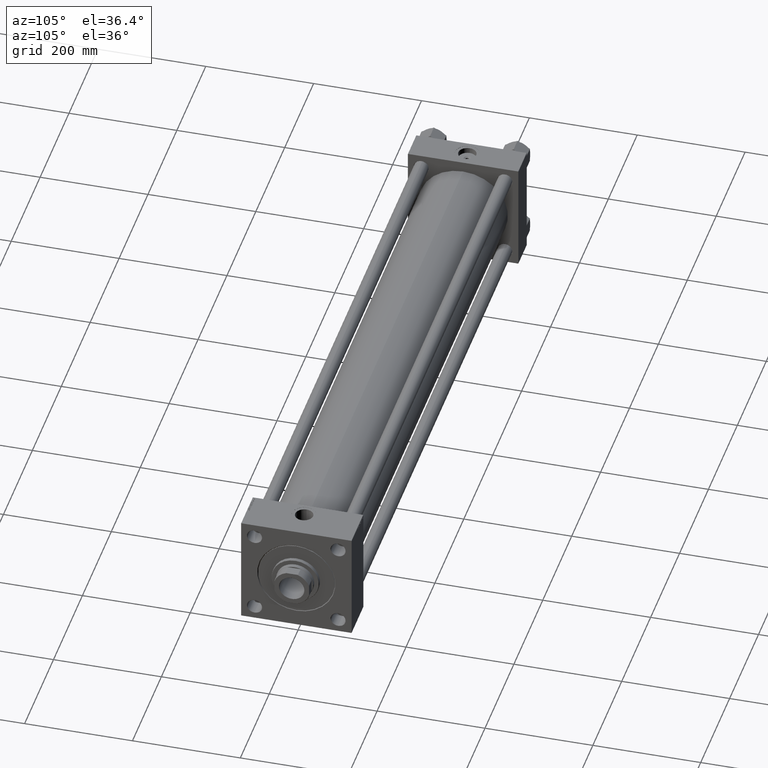
[diagram: clean part render]
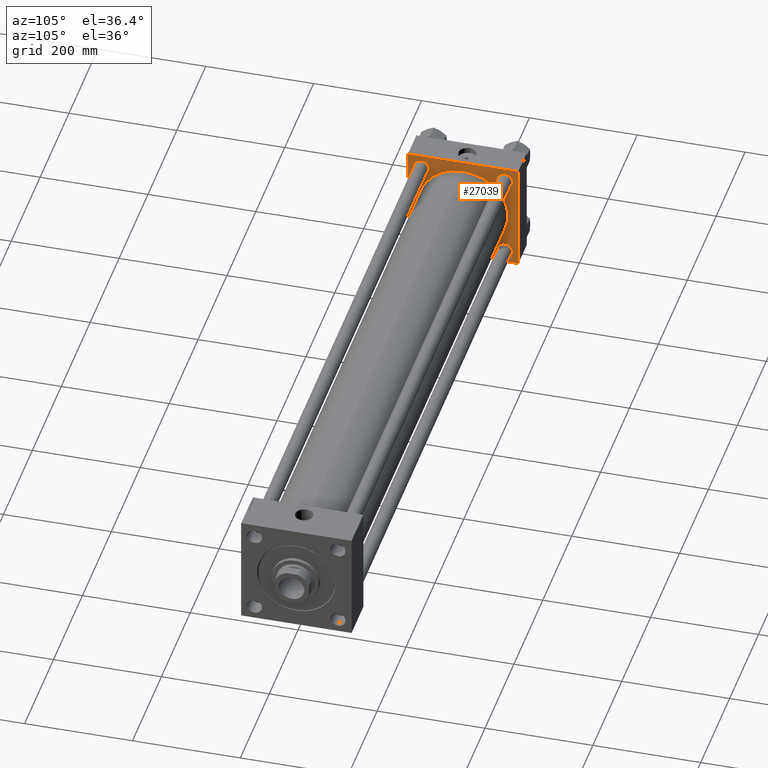
[diagram: same view with one face highlighted and labeled with its STEP entity id]
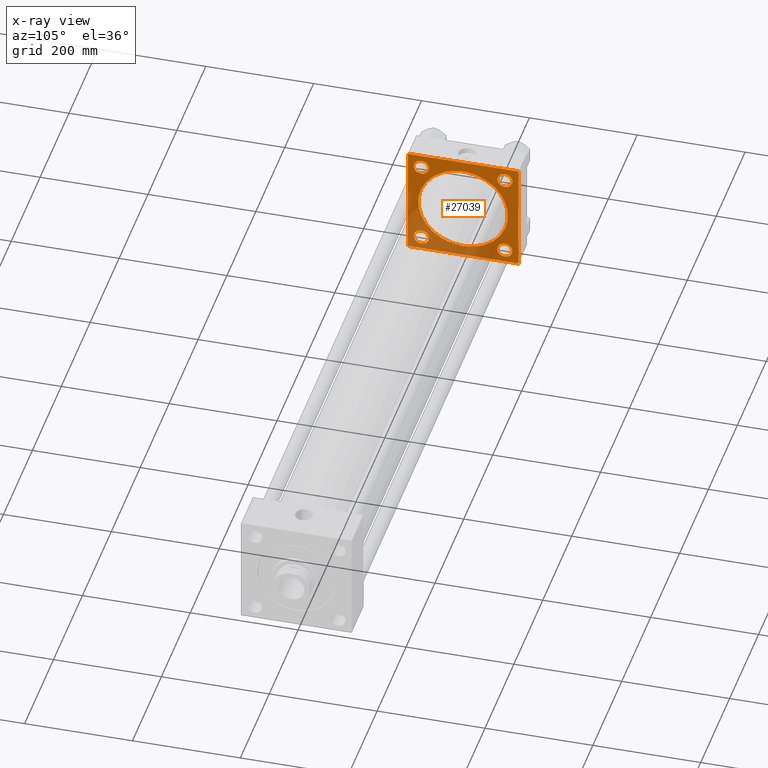
[diagram: x-ray of the same camera — body ghosted, the highlighted face saturated]
A machine part, auxiliary view. The second image highlights one B-rep face of the part: STEP entity #27039.
The next image is the same camera in x-ray: the body ghosted, the highlighted face saturated — about 33% of this face is hidden behind the body in this view.
In plain terms, the highlighted planar face has unit normal (-1, 0, 0).
Its self-contained STEP definition (entity closure, byte-faithful):
#197 = VERTEX_POINT ( 'NONE', #9408 ) ;
#313 = EDGE_CURVE ( 'NONE', #28670, #39860, #47938, .T. ) ;
#443 = EDGE_LOOP ( 'NONE', ( #2883, #39501 ) ) ;
#647 = CARTESIAN_POINT ( 'NONE',  ( 58.00000000000000000, -101.9999999999999147, 102.5000000000000000 ) ) ;
#1218 = CARTESIAN_POINT ( 'NONE',  ( 58.00000000000000000, -77.44999999999996021, 77.45000000000003126 ) ) ;
#1687 = CIRCLE ( 'NONE', #23027, 83.00000000000000000 ) ;
#1791 = CARTESIAN_POINT ( 'NONE',  ( 58.00000000000000000, 102.0000000000000142, 102.5000000000000284 ) ) ;
#2122 = EDGE_CURVE ( 'NONE', #26507, #45393, #36684, .T. ) ;
#2284 = EDGE_CURVE ( 'NONE', #26507, #6156, #35623, .T. ) ;
#2457 = DIRECTION ( 'NONE',  ( -1.000000000000000000, 0.000000000000000000, 0.000000000000000000 ) ) ;
#2765 = EDGE_CURVE ( 'NONE', #45393, #18542, #3622, .T. ) ;
#2883 = ORIENTED_EDGE ( 'NONE', *, *, #30696, .F. ) ;
#3104 = DIRECTION ( 'NONE',  ( 0.000000000000000000, 0.000000000000000000, 1.000000000000000000 ) ) ;
#3184 = CARTESIAN_POINT ( 'NONE',  ( 58.00000000000000000, 102.5000000000000284, -101.9999999999999716 ) ) ;
#3208 = EDGE_CURVE ( 'NONE', #13408, #25303, #33277, .T. ) ;
#3209 = VECTOR ( 'NONE', #27082, 1000.000000000000114 ) ;
#3622 = LINE ( 'NONE', #34942, #8675 ) ;
#3783 = EDGE_LOOP ( 'NONE', ( #34536, #40394, #17226, #39242, #47201, #29360, #7134, #49538 ) ) ;
#5227 = VECTOR ( 'NONE', #37933, 1000.000000000000000 ) ;
#5484 = EDGE_CURVE ( 'NONE', #39860, #28670, #9603, .T. ) ;
#6053 = DIRECTION ( 'NONE',  ( 0.000000000000000000, 0.000000000000000000, 1.000000000000000000 ) ) ;
#6156 = VERTEX_POINT ( 'NONE', #31618 ) ;
#6831 = CARTESIAN_POINT ( 'NONE',  ( 58.00000000000000000, 102.5000000000000284, 102.0000000000000142 ) ) ;
#6941 = EDGE_CURVE ( 'NONE', #37125, #26574, #50523, .T. ) ;
#7134 = ORIENTED_EDGE ( 'NONE', *, *, #6941, .T. ) ;
#7397 = CIRCLE ( 'NONE', #37724, 13.99999999999956835 ) ;
#8336 = ORIENTED_EDGE ( 'NONE', *, *, #35520, .T. ) ;
#8675 = VECTOR ( 'NONE', #31100, 1000.000000000000000 ) ;
#8943 = CARTESIAN_POINT ( 'NONE',  ( 58.00000000000000000, 77.44999999999998863, -77.45000000000001705 ) ) ;
#9167 = EDGE_LOOP ( 'NONE', ( #8336, #28953 ) ) ;
#9211 = DIRECTION ( 'NONE',  ( 0.000000000000000000, 0.000000000000000000, 1.000000000000000000 ) ) ;
#9408 = CARTESIAN_POINT ( 'NONE',  ( 58.00000000000000000, 77.44999999999998863, -63.45000000000045048 ) ) ;
#9603 = CIRCLE ( 'NONE', #38253, 13.99999999999956835 ) ;
#10271 = CARTESIAN_POINT ( 'NONE',  ( 58.00000000000000000, -102.4999999999999716, 102.0000000000000000 ) ) ;
#10374 = CARTESIAN_POINT ( 'NONE',  ( 58.00000000000000000, -101.9999999999999432, -102.5000000000000000 ) ) ;
#10420 = CARTESIAN_POINT ( 'NONE',  ( 58.00000000000000000, -77.44999999999996021, -77.45000000000003126 ) ) ;
#10623 = AXIS2_PLACEMENT_3D ( 'NONE', #8943, #13048, #9211 ) ;
#10930 = CARTESIAN_POINT ( 'NONE',  ( 58.00000000000000000, -77.44999999999996021, -63.45000000000046469 ) ) ;
#11249 = CARTESIAN_POINT ( 'NONE',  ( 58.00000000000000000, 102.5000000000000284, -102.4999999999999716 ) ) ;
#11262 = DIRECTION ( 'NONE',  ( 0.000000000000000000, 0.000000000000000000, 1.000000000000000000 ) ) ;
#11650 = CARTESIAN_POINT ( 'NONE',  ( 58.00000000000004974, -2.602085213965210642E-15, 83.00000000000000000 ) ) ;
#11775 = DIRECTION ( 'NONE',  ( 0.000000000000000000, 0.000000000000000000, -1.000000000000000000 ) ) ;
#12273 = CIRCLE ( 'NONE', #10623, 13.99999999999956835 ) ;
#13048 = DIRECTION ( 'NONE',  ( -1.000000000000000000, 0.000000000000000000, 0.000000000000000000 ) ) ;
#13156 = FACE_BOUND ( 'NONE', #39006, .T. ) ;
#13276 = DIRECTION ( 'NONE',  ( 0.000000000000000000, 0.000000000000000000, 1.000000000000000000 ) ) ;
#13408 = VERTEX_POINT ( 'NONE', #39733 ) ;
#13516 = CIRCLE ( 'NONE', #37272, 83.00000000000000000 ) ;
#13519 = CARTESIAN_POINT ( 'NONE',  ( 58.00000000000004974, -2.602085213965210642E-15, 0.000000000000000000 ) ) ;
#13923 = DIRECTION ( 'NONE',  ( -1.000000000000000000, 0.000000000000000000, 0.000000000000000000 ) ) ;
#14018 = DIRECTION ( 'NONE',  ( 0.000000000000000000, 0.000000000000000000, 1.000000000000000000 ) ) ;
#14100 = EDGE_CURVE ( 'NONE', #26574, #26851, #34769, .T. ) ;
#14361 = CARTESIAN_POINT ( 'NONE',  ( 58.00000000000000000, 77.44999999999998863, 91.44999999999959073 ) ) ;
#15552 = CARTESIAN_POINT ( 'NONE',  ( 58.00000000000004974, -2.602085213965210642E-15, 0.000000000000000000 ) ) ;
#15614 = CARTESIAN_POINT ( 'NONE',  ( 58.00000000000000000, 102.5000000000000284, 102.5000000000000284 ) ) ;
#15879 = DIRECTION ( 'NONE',  ( -1.000000000000000000, 0.000000000000000000, 0.000000000000000000 ) ) ;
#16088 = CARTESIAN_POINT ( 'NONE',  ( 58.00000000000000000, 77.44999999999998863, 63.45000000000045048 ) ) ;
#16674 = EDGE_CURVE ( 'NONE', #34099, #39396, #1687, .T. ) ;
#17226 = ORIENTED_EDGE ( 'NONE', *, *, #2284, .F. ) ;
#17372 = VERTEX_POINT ( 'NONE', #49230 ) ;
#17765 = CARTESIAN_POINT ( 'NONE',  ( 58.00000000000000000, 77.44999999999998863, 77.45000000000001705 ) ) ;
#18542 = VERTEX_POINT ( 'NONE', #647 ) ;
#19316 = ORIENTED_EDGE ( 'NONE', *, *, #313, .T. ) ;
#20079 = AXIS2_PLACEMENT_3D ( 'NONE', #10420, #2457, #14018 ) ;
#20859 = FACE_BOUND ( 'NONE', #443, .T. ) ;
#21618 = AXIS2_PLACEMENT_3D ( 'NONE', #41862, #30589, #3104 ) ;
#22214 = DIRECTION ( 'NONE',  ( -0.000000000000000000, -0.7071067811865474617, -0.7071067811865474617 ) ) ;
#22506 = ORIENTED_EDGE ( 'NONE', *, *, #43637, .T. ) ;
#23027 = AXIS2_PLACEMENT_3D ( 'NONE', #13519, #32531, #13276 ) ;
#24039 = DIRECTION ( 'NONE',  ( -1.000000000000000000, 0.000000000000000000, 0.000000000000000000 ) ) ;
#24710 = FACE_BOUND ( 'NONE', #29171, .T. ) ;
#25303 = VERTEX_POINT ( 'NONE', #34958 ) ;
#25521 = ORIENTED_EDGE ( 'NONE', *, *, #5484, .T. ) ;
#25589 = DIRECTION ( 'NONE',  ( -1.000000000000000000, 0.000000000000000000, 0.000000000000000000 ) ) ;
#26007 = EDGE_CURVE ( 'NONE', #27773, #197, #39581, .T. ) ;
#26317 = CARTESIAN_POINT ( 'NONE',  ( 58.00000000000000000, -102.4999999999999716, 102.0000000000000000 ) ) ;
#26484 = EDGE_LOOP ( 'NONE', ( #28849, #22506 ) ) ;
#26507 = VERTEX_POINT ( 'NONE', #6831 ) ;
#26527 = CIRCLE ( 'NONE', #37966, 13.99999999999956835 ) ;
#26574 = VERTEX_POINT ( 'NONE', #50185 ) ;
#26851 = VERTEX_POINT ( 'NONE', #10374 ) ;
#27039 = ADVANCED_FACE ( 'NONE', ( #13156, #32421, #48044, #24710, #20859, #36499 ), #28824, .F. ) ;
#27082 = DIRECTION ( 'NONE',  ( 0.000000000000000000, 0.7071067811865474617, -0.7071067811865474617 ) ) ;
#27773 = VERTEX_POINT ( 'NONE', #44715 ) ;
#27861 = EDGE_CURVE ( 'NONE', #37692, #31472, #26527, .T. ) ;
#28670 = VERTEX_POINT ( 'NONE', #10930 ) ;
#28824 = PLANE ( 'NONE',  #21618 ) ;
#28849 = ORIENTED_EDGE ( 'NONE', *, *, #26007, .T. ) ;
#28953 = ORIENTED_EDGE ( 'NONE', *, *, #3208, .T. ) ;
#29171 = EDGE_LOOP ( 'NONE', ( #32138, #30766 ) ) ;
#29270 = EDGE_CURVE ( 'NONE', #17372, #26851, #50244, .T. ) ;
#29360 = ORIENTED_EDGE ( 'NONE', *, *, #36997, .T. ) ;
#29591 = DIRECTION ( 'NONE',  ( 0.000000000000000000, 0.000000000000000000, 1.000000000000000000 ) ) ;
#29990 = VECTOR ( 'NONE', #32864, 1000.000000000000114 ) ;
#30019 = AXIS2_PLACEMENT_3D ( 'NONE', #1218, #32563, #48184 ) ;
#30589 = DIRECTION ( 'NONE',  ( -1.000000000000000000, 0.000000000000000000, 0.000000000000000000 ) ) ;
#30660 = LINE ( 'NONE', #3184, #42424 ) ;
#30696 = EDGE_CURVE ( 'NONE', #39396, #34099, #13516, .T. ) ;
#30766 = ORIENTED_EDGE ( 'NONE', *, *, #46420, .T. ) ;
#31100 = DIRECTION ( 'NONE',  ( 0.000000000000000000, -1.000000000000000000, -1.353930517835556973E-16 ) ) ;
#31226 = DIRECTION ( 'NONE',  ( 1.000000000000000000, -0.000000000000000000, -0.000000000000000000 ) ) ;
#31472 = VERTEX_POINT ( 'NONE', #14361 ) ;
#31618 = CARTESIAN_POINT ( 'NONE',  ( 58.00000000000000000, 102.5000000000000284, -101.9999999999999147 ) ) ;
#32138 = ORIENTED_EDGE ( 'NONE', *, *, #27861, .T. ) ;
#32246 = DIRECTION ( 'NONE',  ( 0.000000000000000000, 0.000000000000000000, 1.000000000000000000 ) ) ;
#32421 = FACE_BOUND ( 'NONE', #26484, .T. ) ;
#32531 = DIRECTION ( 'NONE',  ( 1.000000000000000000, -0.000000000000000000, -0.000000000000000000 ) ) ;
#32563 = DIRECTION ( 'NONE',  ( -1.000000000000000000, 0.000000000000000000, 0.000000000000000000 ) ) ;
#32864 = DIRECTION ( 'NONE',  ( 0.000000000000000000, -0.7071067811865474617, 0.7071067811865474617 ) ) ;
#33277 = CIRCLE ( 'NONE', #30019, 13.99999999999956835 ) ;
#34099 = VERTEX_POINT ( 'NONE', #48848 ) ;
#34536 = ORIENTED_EDGE ( 'NONE', *, *, #29270, .F. ) ;
#34645 = CARTESIAN_POINT ( 'NONE',  ( 58.00000000000000000, -102.4999999999999716, 102.5000000000000000 ) ) ;
#34769 = LINE ( 'NONE', #50397, #3209 ) ;
#34942 = CARTESIAN_POINT ( 'NONE',  ( 58.00000000000000000, 102.5000000000000284, 102.5000000000000284 ) ) ;
#34958 = CARTESIAN_POINT ( 'NONE',  ( 58.00000000000000000, -77.44999999999996021, 63.45000000000046469 ) ) ;
#35520 = EDGE_CURVE ( 'NONE', #25303, #13408, #43031, .T. ) ;
#35623 = LINE ( 'NONE', #15614, #45566 ) ;
#36499 = FACE_OUTER_BOUND ( 'NONE', #3783, .T. ) ;
#36684 = LINE ( 'NONE', #1791, #29990 ) ;
#36830 = CARTESIAN_POINT ( 'NONE',  ( 58.00000000000000000, -77.44999999999996021, -91.44999999999960494 ) ) ;
#36997 = EDGE_CURVE ( 'NONE', #18542, #37125, #41692, .T. ) ;
#37125 = VERTEX_POINT ( 'NONE', #10271 ) ;
#37272 = AXIS2_PLACEMENT_3D ( 'NONE', #15552, #31226, #46865 ) ;
#37692 = VERTEX_POINT ( 'NONE', #16088 ) ;
#37724 = AXIS2_PLACEMENT_3D ( 'NONE', #41718, #25589, #6053 ) ;
#37933 = DIRECTION ( 'NONE',  ( 0.000000000000000000, -1.000000000000000000, -1.353930517835556727E-16 ) ) ;
#37966 = AXIS2_PLACEMENT_3D ( 'NONE', #17765, #13923, #29591 ) ;
#38139 = VECTOR ( 'NONE', #22214, 1000.000000000000114 ) ;
#38253 = AXIS2_PLACEMENT_3D ( 'NONE', #43514, #24039, #32246 ) ;
#39006 = EDGE_LOOP ( 'NONE', ( #25521, #19316 ) ) ;
#39242 = ORIENTED_EDGE ( 'NONE', *, *, #2122, .T. ) ;
#39396 = VERTEX_POINT ( 'NONE', #11650 ) ;
#39501 = ORIENTED_EDGE ( 'NONE', *, *, #16674, .F. ) ;
#39581 = CIRCLE ( 'NONE', #46136, 13.99999999999956835 ) ;
#39733 = CARTESIAN_POINT ( 'NONE',  ( 58.00000000000000000, -77.44999999999996021, 91.44999999999960494 ) ) ;
#39860 = VERTEX_POINT ( 'NONE', #36830 ) ;
#40199 = CARTESIAN_POINT ( 'NONE',  ( 58.00000000000000000, 102.0000000000000142, 102.5000000000000284 ) ) ;
#40394 = ORIENTED_EDGE ( 'NONE', *, *, #42671, .T. ) ;
#41692 = LINE ( 'NONE', #26317, #38139 ) ;
#41718 = CARTESIAN_POINT ( 'NONE',  ( 58.00000000000000000, 77.44999999999998863, 77.45000000000001705 ) ) ;
#41862 = CARTESIAN_POINT ( 'NONE',  ( 58.00000000000000000, 0.000000000000000000, 0.000000000000000000 ) ) ;
#42424 = VECTOR ( 'NONE', #45289, 1000.000000000000114 ) ;
#42522 = CARTESIAN_POINT ( 'NONE',  ( 58.00000000000000000, 77.44999999999998863, -77.45000000000001705 ) ) ;
#42576 = DIRECTION ( 'NONE',  ( 0.000000000000000000, -1.353930517835556973E-16, -1.000000000000000000 ) ) ;
#42671 = EDGE_CURVE ( 'NONE', #17372, #6156, #30660, .T. ) ;
#43031 = CIRCLE ( 'NONE', #45474, 13.99999999999956835 ) ;
#43251 = VECTOR ( 'NONE', #42576, 1000.000000000000000 ) ;
#43514 = CARTESIAN_POINT ( 'NONE',  ( 58.00000000000000000, -77.44999999999996021, -77.45000000000003126 ) ) ;
#43637 = EDGE_CURVE ( 'NONE', #197, #27773, #12273, .T. ) ;
#44715 = CARTESIAN_POINT ( 'NONE',  ( 58.00000000000000000, 77.44999999999998863, -91.44999999999959073 ) ) ;
#45289 = DIRECTION ( 'NONE',  ( -0.000000000000000000, 0.7071067811865474617, 0.7071067811865474617 ) ) ;
#45393 = VERTEX_POINT ( 'NONE', #40199 ) ;
#45474 = AXIS2_PLACEMENT_3D ( 'NONE', #50759, #15879, #11262 ) ;
#45566 = VECTOR ( 'NONE', #11775, 1000.000000000000000 ) ;
#46118 = DIRECTION ( 'NONE',  ( -1.000000000000000000, 0.000000000000000000, 0.000000000000000000 ) ) ;
#46136 = AXIS2_PLACEMENT_3D ( 'NONE', #42522, #46118, #50219 ) ;
#46420 = EDGE_CURVE ( 'NONE', #31472, #37692, #7397, .T. ) ;
#46865 = DIRECTION ( 'NONE',  ( 0.000000000000000000, 0.000000000000000000, 1.000000000000000000 ) ) ;
#47201 = ORIENTED_EDGE ( 'NONE', *, *, #2765, .T. ) ;
#47938 = CIRCLE ( 'NONE', #20079, 13.99999999999956835 ) ;
#48044 = FACE_BOUND ( 'NONE', #9167, .T. ) ;
#48184 = DIRECTION ( 'NONE',  ( 0.000000000000000000, 0.000000000000000000, 1.000000000000000000 ) ) ;
#48848 = CARTESIAN_POINT ( 'NONE',  ( 58.00000000000004974, 7.562483218957820855E-15, -83.00000000000000000 ) ) ;
#49230 = CARTESIAN_POINT ( 'NONE',  ( 58.00000000000000000, 102.0000000000000142, -102.4999999999999716 ) ) ;
#49538 = ORIENTED_EDGE ( 'NONE', *, *, #14100, .T. ) ;
#50185 = CARTESIAN_POINT ( 'NONE',  ( 58.00000000000000000, -102.5000000000000000, -101.9999999999998863 ) ) ;
#50219 = DIRECTION ( 'NONE',  ( 0.000000000000000000, 0.000000000000000000, 1.000000000000000000 ) ) ;
#50244 = LINE ( 'NONE', #11249, #5227 ) ;
#50397 = CARTESIAN_POINT ( 'NONE',  ( 58.00000000000000000, -101.9999999999999432, -102.5000000000000000 ) ) ;
#50523 = LINE ( 'NONE', #34645, #43251 ) ;
#50759 = CARTESIAN_POINT ( 'NONE',  ( 58.00000000000000000, -77.44999999999996021, 77.45000000000003126 ) ) ;